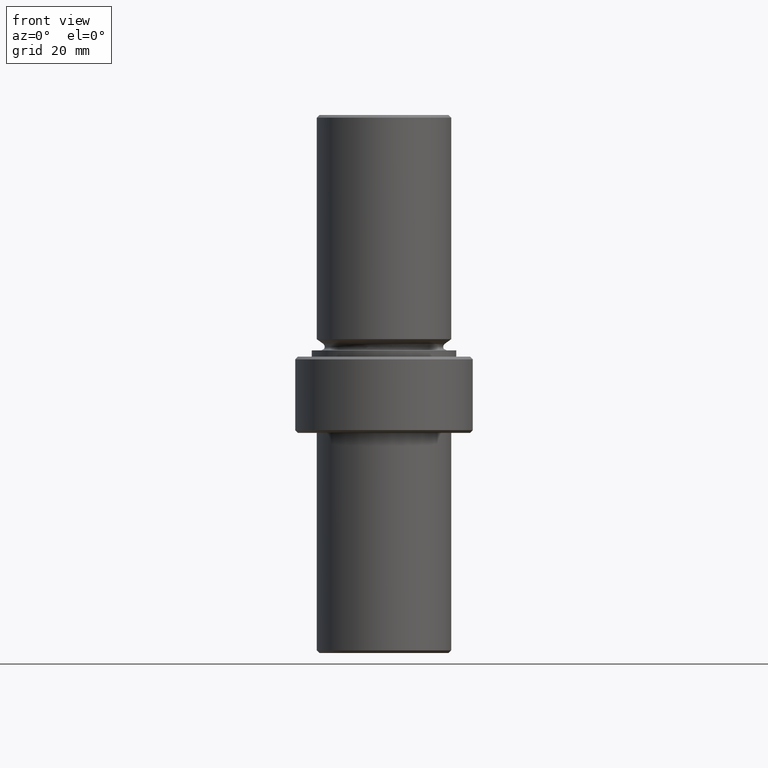
[diagram: clean part render]
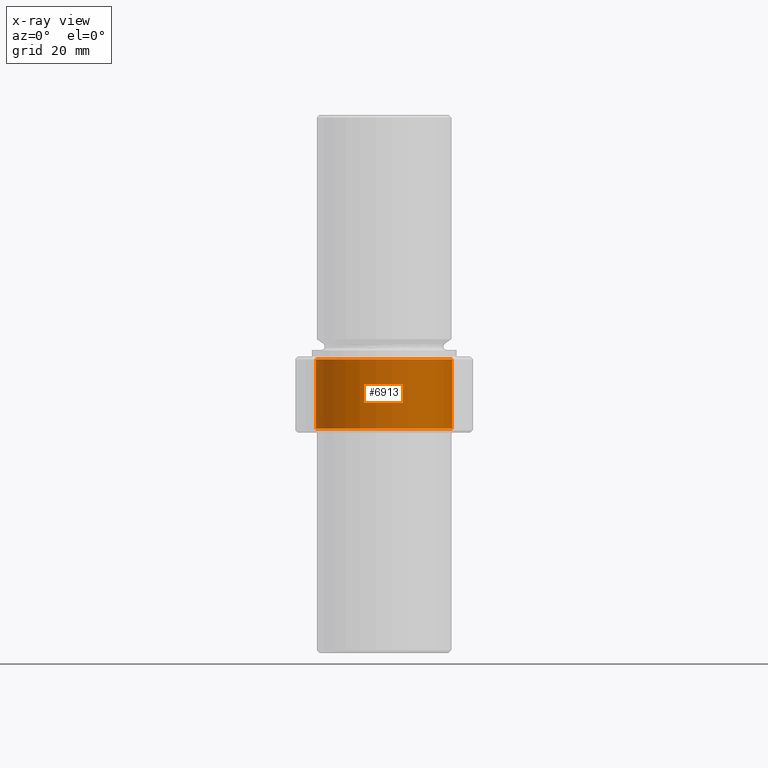
[diagram: x-ray — body ghosted, one internal face saturated and labeled with its STEP entity id]
A machine part, front view, then the same camera in x-ray: the body is ghosted and one INTERNAL B-rep face — a face not visible from any outside direction — is saturated and labeled: STEP entity #6913.
In plain terms, the highlighted cylindrical surface (bore or boss wall) has radius 19.304 mm, axis along (0, 0, 1).
Its self-contained STEP definition (entity closure, byte-faithful):
#6886=CARTESIAN_POINT('',(0.0,0.0,0.051500000000002));
#6887=DIRECTION('',(0.0,0.0,-1.0));
#6888=DIRECTION('',(1.0,0.0,0.0));
#6889=AXIS2_PLACEMENT_3D('',#6886,#6887,#6888);
#6890=CYLINDRICAL_SURFACE('',#6889,0.760000000000005);
#6891=CARTESIAN_POINT('',(-0.760000000000005,9.307008E-017,0.439000000000002));
#6892=VERTEX_POINT('',#6891);
#6893=CARTESIAN_POINT('',(0.0,0.0,0.439000000000002));
#6894=DIRECTION('',(0.0,0.0,-1.0));
#6895=DIRECTION('',(1.0,0.0,0.0));
#6896=AXIS2_PLACEMENT_3D('',#6893,#6894,#6895);
#6897=CIRCLE('',#6896,0.760000000000005);
#6898=EDGE_CURVE('',#6892,#6892,#6897,.T.);
#6899=ORIENTED_EDGE('',*,*,#6898,.T.);
#6900=EDGE_LOOP('',(#6899));
#6901=FACE_OUTER_BOUND('',#6900,.T.);
#6902=CARTESIAN_POINT('',(-0.760000000000005,9.307008E-017,-0.335999999999998));
#6903=VERTEX_POINT('',#6902);
#6904=CARTESIAN_POINT('',(0.0,0.0,-0.335999999999998));
#6905=DIRECTION('',(0.0,0.0,-1.0));
#6906=DIRECTION('',(1.0,0.0,0.0));
#6907=AXIS2_PLACEMENT_3D('',#6904,#6905,#6906);
#6908=CIRCLE('',#6907,0.760000000000005);
#6909=EDGE_CURVE('',#6903,#6903,#6908,.T.);
#6910=ORIENTED_EDGE('',*,*,#6909,.F.);
#6911=EDGE_LOOP('',(#6910));
#6912=FACE_BOUND('',#6911,.T.);
#6913=ADVANCED_FACE('',(#6901,#6912),#6890,.T.);